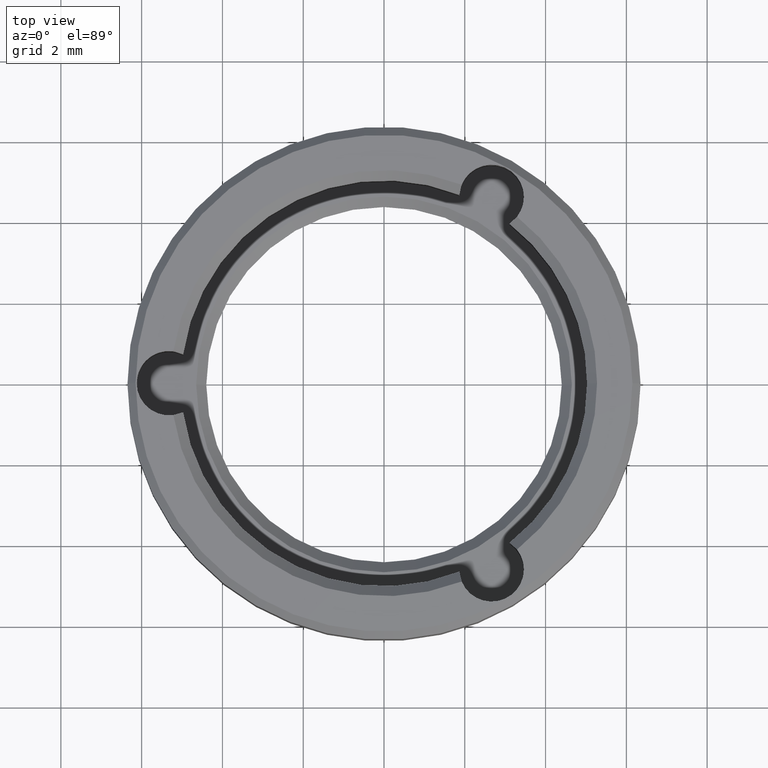
[diagram: clean part render]
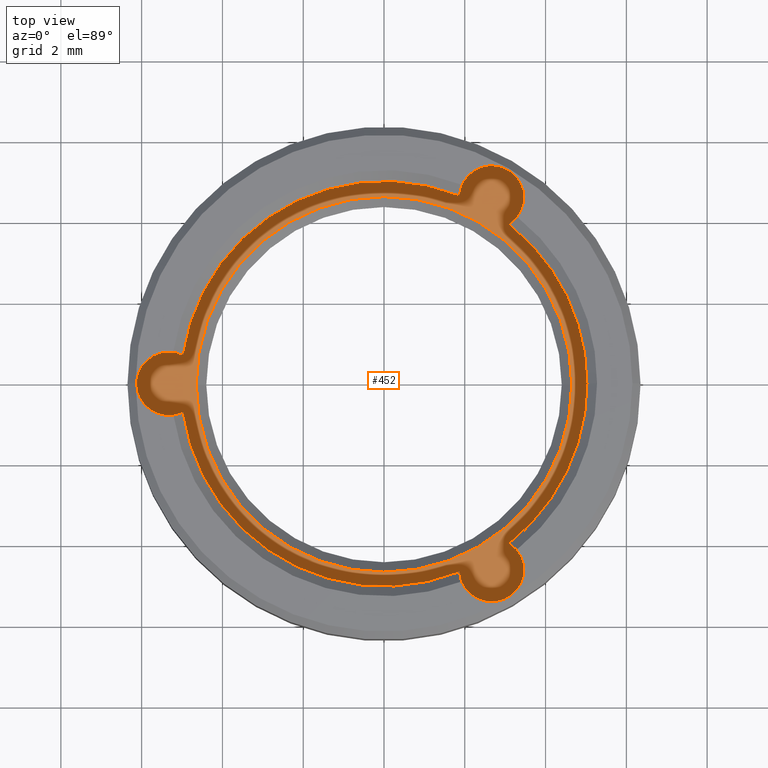
[diagram: same view with one face highlighted and labeled with its STEP entity id]
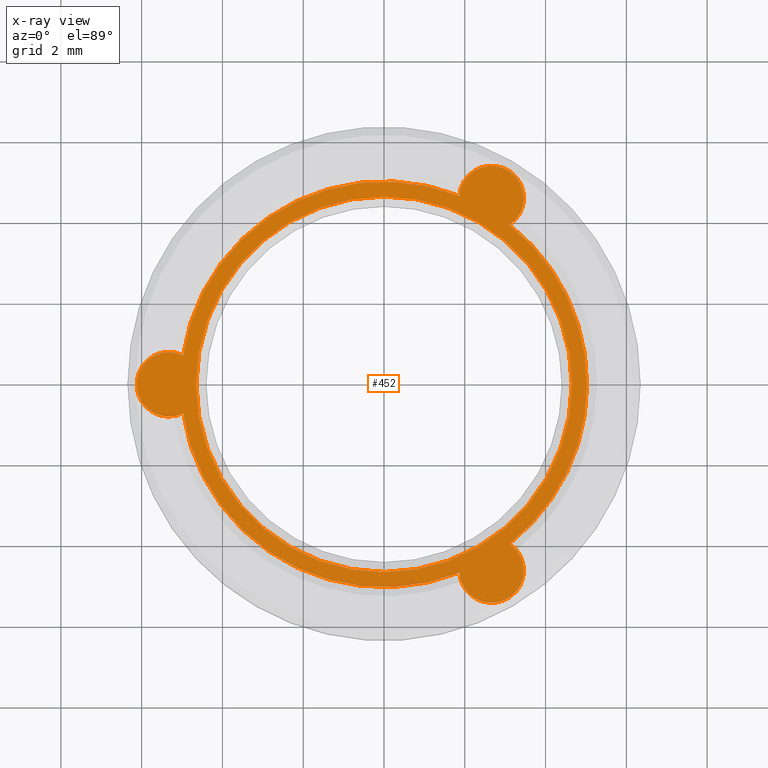
[diagram: x-ray of the same camera — body ghosted, the highlighted face saturated]
A machine part, top view. The second image highlights one B-rep face of the part: STEP entity #452.
The next image is the same camera in x-ray: the body ghosted, the highlighted face saturated — about 0% of this face is hidden behind the body in this view.
In plain terms, the highlighted planar face has unit normal (0, 0, 1).
Its self-contained STEP definition (entity closure, byte-faithful):
#6 = EDGE_LOOP ( 'NONE', ( #389, #498, #859, #386, #307, #310, #216, #151, #727 ) ) ;
#19 = CARTESIAN_POINT ( 'NONE',  ( 2.662500000000021849, -4.611585275152124019, 0.7000000000000000666 ) ) ;
#23 = DIRECTION ( 'NONE',  ( 0.000000000000000000, 0.000000000000000000, 1.000000000000000000 ) ) ;
#28 = VERTEX_POINT ( 'NONE', #768 ) ;
#31 = CIRCLE ( 'NONE', #533, 0.8000000000000012657 ) ;
#51 = CARTESIAN_POINT ( 'NONE',  ( 3.462499999999957723, 4.611585275152160435, 0.7000000000000000666 ) ) ;
#56 = CIRCLE ( 'NONE', #127, 0.8000000000000008216 ) ;
#59 = AXIS2_PLACEMENT_3D ( 'NONE', #288, #844, #723 ) ;
#76 = DIRECTION ( 'NONE',  ( 1.000000000000000000, 0.000000000000000000, 0.000000000000000000 ) ) ;
#102 = CIRCLE ( 'NONE', #265, 5.025000000000000355 ) ;
#104 = FACE_BOUND ( 'NONE', #537, .T. ) ;
#107 = CARTESIAN_POINT ( 'NONE',  ( 0.000000000000000000, 0.000000000000000000, 0.7000000000000000666 ) ) ;
#109 = VERTEX_POINT ( 'NONE', #198 ) ;
#126 = DIRECTION ( 'NONE',  ( -0.000000000000000000, -0.000000000000000000, -1.000000000000000000 ) ) ;
#127 = AXIS2_PLACEMENT_3D ( 'NONE', #303, #804, #705 ) ;
#129 = CIRCLE ( 'NONE', #597, 0.8000000000000008216 ) ;
#133 = CARTESIAN_POINT ( 'NONE',  ( 0.000000000000000000, 0.000000000000000000, 0.7000000000000000666 ) ) ;
#137 = DIRECTION ( 'NONE',  ( 0.000000000000000000, 0.000000000000000000, 1.000000000000000000 ) ) ;
#151 = ORIENTED_EDGE ( 'NONE', *, *, #749, .F. ) ;
#161 = VERTEX_POINT ( 'NONE', #339 ) ;
#163 = AXIS2_PLACEMENT_3D ( 'NONE', #701, #892, #479 ) ;
#198 = CARTESIAN_POINT ( 'NONE',  ( 4.650000000000003020, 0.000000000000000000, 0.7000000000000000666 ) ) ;
#215 = VERTEX_POINT ( 'NONE', #426 ) ;
#216 = ORIENTED_EDGE ( 'NONE', *, *, #887, .T. ) ;
#223 = CARTESIAN_POINT ( 'NONE',  ( 0.000000000000000000, 0.000000000000000000, 0.7000000000000000666 ) ) ;
#249 = EDGE_CURVE ( 'NONE', #109, #824, #724, .T. ) ;
#256 = ORIENTED_EDGE ( 'NONE', *, *, #693, .T. ) ;
#264 = CARTESIAN_POINT ( 'NONE',  ( 1.864375986210773162, -4.666339805676459562, 0.7000000000000000666 ) ) ;
#265 = AXIS2_PLACEMENT_3D ( 'NONE', #568, #137, #76 ) ;
#268 = EDGE_CURVE ( 'NONE', #717, #782, #129, .T. ) ;
#283 = CARTESIAN_POINT ( 'NONE',  ( 2.662500000000021849, -4.611585275152124019, 0.7000000000000000666 ) ) ;
#288 = CARTESIAN_POINT ( 'NONE',  ( 0.000000000000000000, 0.000000000000000000, 0.7000000000000000666 ) ) ;
#294 = CIRCLE ( 'NONE', #563, 0.8000000000000008216 ) ;
#303 = CARTESIAN_POINT ( 'NONE',  ( 2.662499999999956568, 4.611585275152160435, 0.7000000000000000666 ) ) ;
#307 = ORIENTED_EDGE ( 'NONE', *, *, #728, .T. ) ;
#310 = ORIENTED_EDGE ( 'NONE', *, *, #595, .F. ) ;
#317 = VERTEX_POINT ( 'NONE', #441 ) ;
#329 = EDGE_CURVE ( 'NONE', #161, #576, #56, .T. ) ;
#339 = CARTESIAN_POINT ( 'NONE',  ( 1.864375986210706992, 4.666339805676486208, 0.7000000000000000666 ) ) ;
#343 = DIRECTION ( 'NONE',  ( 1.000000000000000000, 8.881784197001248379E-16, 0.000000000000000000 ) ) ;
#363 = DIRECTION ( 'NONE',  ( -0.000000000000000000, -0.000000000000000000, -1.000000000000000000 ) ) ;
#367 = AXIS2_PLACEMENT_3D ( 'NONE', #133, #833, #406 ) ;
#376 = FACE_OUTER_BOUND ( 'NONE', #6, .T. ) ;
#386 = ORIENTED_EDGE ( 'NONE', *, *, #329, .F. ) ;
#389 = ORIENTED_EDGE ( 'NONE', *, *, #629, .T. ) ;
#406 = DIRECTION ( 'NONE',  ( 1.000000000000000000, 0.000000000000000000, 0.000000000000000000 ) ) ;
#426 = CARTESIAN_POINT ( 'NONE',  ( 5.025000000000000355, 0.000000000000000000, 0.7000000000000000666 ) ) ;
#433 = CARTESIAN_POINT ( 'NONE',  ( 0.000000000000000000, 0.000000000000000000, 0.7000000000000000666 ) ) ;
#441 = CARTESIAN_POINT ( 'NONE',  ( -4.973356807511738253, 0.7185729365740570751, 0.7000000000000000666 ) ) ;
#444 = AXIS2_PLACEMENT_3D ( 'NONE', #223, #23, #491 ) ;
#446 = CARTESIAN_POINT ( 'NONE',  ( -4.650000000000003020, 5.694607616035195828E-16, 0.7000000000000000666 ) ) ;
#452 = ADVANCED_FACE ( 'NONE', ( #104, #376 ), #607, .T. ) ;
#472 = CIRCLE ( 'NONE', #367, 5.025000000000000355 ) ;
#479 = DIRECTION ( 'NONE',  ( 1.000000000000000000, 0.000000000000000000, 0.000000000000000000 ) ) ;
#487 = CIRCLE ( 'NONE', #59, 4.650000000000003020 ) ;
#491 = DIRECTION ( 'NONE',  ( 1.000000000000000000, 0.000000000000000000, 0.000000000000000000 ) ) ;
#493 = EDGE_CURVE ( 'NONE', #576, #902, #818, .T. ) ;
#495 = CARTESIAN_POINT ( 'NONE',  ( 3.108980821301005726, -3.947766869102396825, 0.7000000000000000666 ) ) ;
#498 = ORIENTED_EDGE ( 'NONE', *, *, #527, .T. ) ;
#507 = DIRECTION ( 'NONE',  ( -0.000000000000000000, -0.000000000000000000, -1.000000000000000000 ) ) ;
#509 = VERTEX_POINT ( 'NONE', #264 ) ;
#524 = DIRECTION ( 'NONE',  ( 0.000000000000000000, 0.000000000000000000, 1.000000000000000000 ) ) ;
#527 = EDGE_CURVE ( 'NONE', #215, #902, #472, .T. ) ;
#529 = CARTESIAN_POINT ( 'NONE',  ( 0.000000000000000000, 0.000000000000000000, 0.7000000000000000666 ) ) ;
#533 = AXIS2_PLACEMENT_3D ( 'NONE', #557, #126, #343 ) ;
#537 = EDGE_LOOP ( 'NONE', ( #849, #256 ) ) ;
#549 = CIRCLE ( 'NONE', #759, 5.025000000000000355 ) ;
#557 = CARTESIAN_POINT ( 'NONE',  ( -5.325000000000000178, -6.521244205459656303E-16, 0.7000000000000000666 ) ) ;
#563 = AXIS2_PLACEMENT_3D ( 'NONE', #283, #573, #795 ) ;
#568 = CARTESIAN_POINT ( 'NONE',  ( 0.000000000000000000, 0.000000000000000000, 0.7000000000000000666 ) ) ;
#573 = DIRECTION ( 'NONE',  ( -0.000000000000000000, -0.000000000000000000, -1.000000000000000000 ) ) ;
#576 = VERTEX_POINT ( 'NONE', #51 ) ;
#585 = CARTESIAN_POINT ( 'NONE',  ( 3.462500000000023004, -4.611585275152124019, 0.7000000000000000666 ) ) ;
#595 = EDGE_CURVE ( 'NONE', #28, #317, #31, .T. ) ;
#597 = AXIS2_PLACEMENT_3D ( 'NONE', #19, #507, #716 ) ;
#607 = PLANE ( 'NONE',  #651 ) ;
#629 = EDGE_CURVE ( 'NONE', #717, #215, #102, .T. ) ;
#651 = AXIS2_PLACEMENT_3D ( 'NONE', #529, #883, #879 ) ;
#693 = EDGE_CURVE ( 'NONE', #824, #109, #487, .T. ) ;
#701 = CARTESIAN_POINT ( 'NONE',  ( 2.662499999999956568, 4.611585275152160435, 0.7000000000000000666 ) ) ;
#705 = DIRECTION ( 'NONE',  ( 1.000000000000000000, 0.000000000000000000, 0.000000000000000000 ) ) ;
#716 = DIRECTION ( 'NONE',  ( 1.000000000000000000, 0.000000000000000000, 0.000000000000000000 ) ) ;
#717 = VERTEX_POINT ( 'NONE', #495 ) ;
#723 = DIRECTION ( 'NONE',  ( 1.000000000000000000, 0.000000000000000000, 0.000000000000000000 ) ) ;
#724 = CIRCLE ( 'NONE', #897, 4.650000000000003020 ) ;
#727 = ORIENTED_EDGE ( 'NONE', *, *, #268, .F. ) ;
#728 = EDGE_CURVE ( 'NONE', #161, #317, #843, .T. ) ;
#749 = EDGE_CURVE ( 'NONE', #782, #509, #294, .T. ) ;
#759 = AXIS2_PLACEMENT_3D ( 'NONE', #107, #524, #809 ) ;
#768 = CARTESIAN_POINT ( 'NONE',  ( -4.973356807511738253, -0.7185729365740582963, 0.7000000000000000666 ) ) ;
#782 = VERTEX_POINT ( 'NONE', #585 ) ;
#795 = DIRECTION ( 'NONE',  ( 1.000000000000000000, 0.000000000000000000, 0.000000000000000000 ) ) ;
#804 = DIRECTION ( 'NONE',  ( -0.000000000000000000, -0.000000000000000000, -1.000000000000000000 ) ) ;
#809 = DIRECTION ( 'NONE',  ( 1.000000000000000000, 0.000000000000000000, 0.000000000000000000 ) ) ;
#818 = CIRCLE ( 'NONE', #163, 0.8000000000000008216 ) ;
#824 = VERTEX_POINT ( 'NONE', #446 ) ;
#833 = DIRECTION ( 'NONE',  ( 0.000000000000000000, 0.000000000000000000, 1.000000000000000000 ) ) ;
#843 = CIRCLE ( 'NONE', #444, 5.025000000000000355 ) ;
#844 = DIRECTION ( 'NONE',  ( -0.000000000000000000, -0.000000000000000000, -1.000000000000000000 ) ) ;
#849 = ORIENTED_EDGE ( 'NONE', *, *, #249, .T. ) ;
#852 = DIRECTION ( 'NONE',  ( 1.000000000000000000, 0.000000000000000000, 0.000000000000000000 ) ) ;
#859 = ORIENTED_EDGE ( 'NONE', *, *, #493, .F. ) ;
#874 = CARTESIAN_POINT ( 'NONE',  ( 3.108980821300949771, 3.947766869102439458, 0.7000000000000000666 ) ) ;
#879 = DIRECTION ( 'NONE',  ( 1.000000000000000000, 0.000000000000000000, -0.000000000000000000 ) ) ;
#883 = DIRECTION ( 'NONE',  ( 0.000000000000000000, 0.000000000000000000, 1.000000000000000000 ) ) ;
#887 = EDGE_CURVE ( 'NONE', #28, #509, #549, .T. ) ;
#892 = DIRECTION ( 'NONE',  ( -0.000000000000000000, -0.000000000000000000, -1.000000000000000000 ) ) ;
#897 = AXIS2_PLACEMENT_3D ( 'NONE', #433, #363, #852 ) ;
#902 = VERTEX_POINT ( 'NONE', #874 ) ;